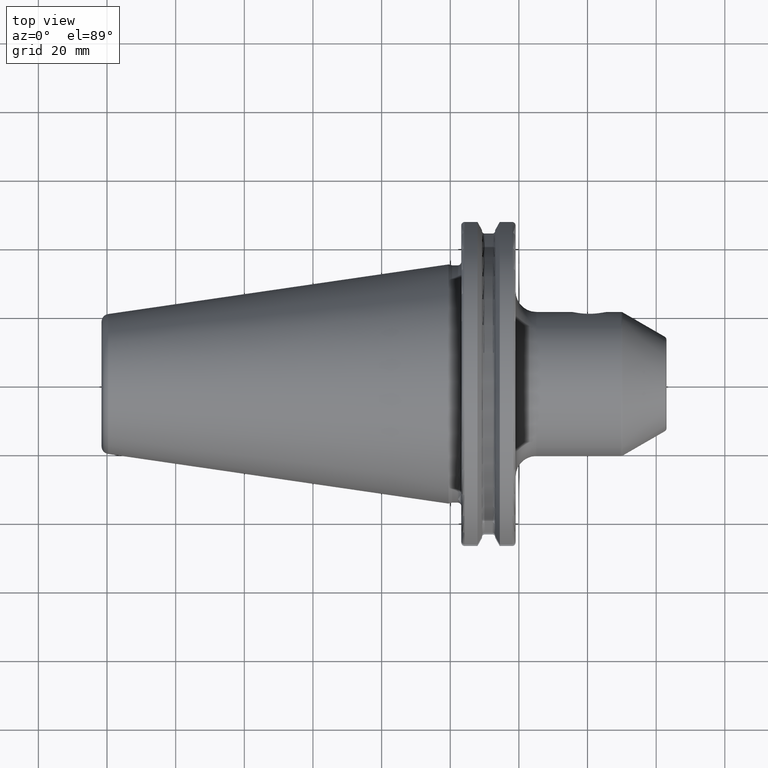
[diagram: clean part render]
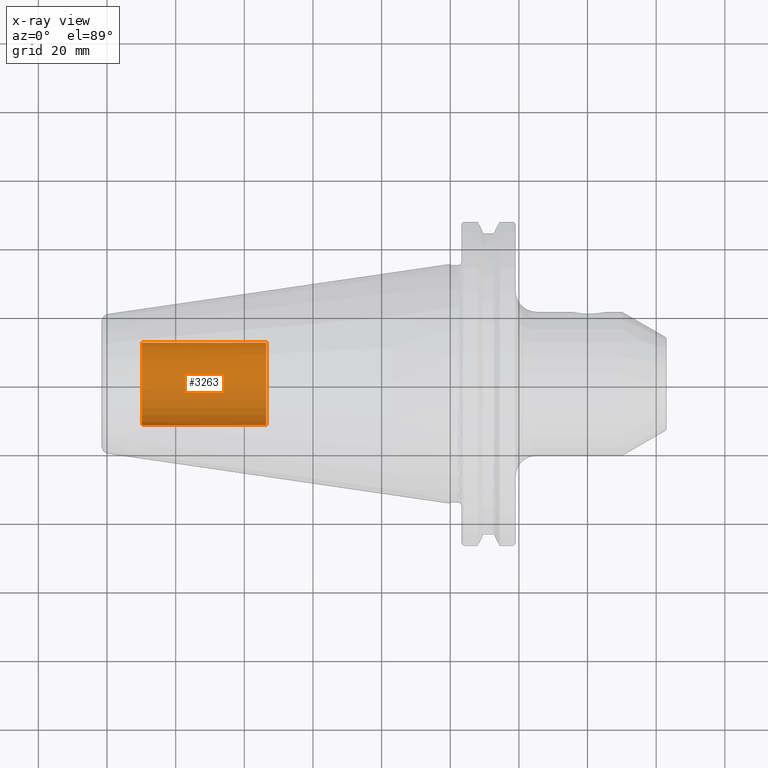
[diagram: x-ray — body ghosted, one internal face saturated and labeled with its STEP entity id]
A machine part, top view, then the same camera in x-ray: the body is ghosted and one INTERNAL B-rep face — a face not visible from any outside direction — is saturated and labeled: STEP entity #3263.
In plain terms, the highlighted cylindrical surface (partial cylindrical patch) has radius 12.0032 mm, axis along (1, 0, 0).
Its self-contained STEP definition (entity closure, byte-faithful):
#3198=CARTESIAN_POINT('',(-8.985E1,0.E0,0.E0));
#3199=DIRECTION('',(-1.E0,0.E0,0.E0));
#3200=DIRECTION('',(0.E0,1.E0,0.E0));
#3201=AXIS2_PLACEMENT_3D('',#3198,#3199,#3200);
#3203=DIRECTION('',(1.E0,0.E0,0.E0));
#3204=VECTOR('',#3203,3.625E1);
#3205=CARTESIAN_POINT('',(-8.985E1,-1.200325E1,0.E0));
#3206=LINE('',#3205,#3204);
#3212=DIRECTION('',(1.E0,0.E0,0.E0));
#3213=VECTOR('',#3212,3.625E1);
#3214=CARTESIAN_POINT('',(-8.985E1,1.200325E1,0.E0));
#3215=LINE('',#3214,#3213);
#3221=CARTESIAN_POINT('',(-5.36E1,0.E0,0.E0));
#3222=DIRECTION('',(1.E0,0.E0,0.E0));
#3223=DIRECTION('',(0.E0,-1.E0,0.E0));
#3224=AXIS2_PLACEMENT_3D('',#3221,#3222,#3223);
#3236=CARTESIAN_POINT('',(-8.985E1,1.200325E1,0.E0));
#3237=CARTESIAN_POINT('',(-8.985E1,-1.200325E1,0.E0));
#3238=VERTEX_POINT('',#3236);
#3239=VERTEX_POINT('',#3237);
#3240=CARTESIAN_POINT('',(-5.36E1,1.200325E1,0.E0));
#3241=CARTESIAN_POINT('',(-5.36E1,-1.200325E1,0.E0));
#3242=VERTEX_POINT('',#3240);
#3243=VERTEX_POINT('',#3241);
#3248=CARTESIAN_POINT('',(-8.985E1,0.E0,0.E0));
#3249=DIRECTION('',(1.E0,0.E0,0.E0));
#3250=DIRECTION('',(0.E0,1.E0,0.E0));
#3251=AXIS2_PLACEMENT_3D('',#3248,#3249,#3250);
#3252=CYLINDRICAL_SURFACE('',#3251,1.200325E1);
#3254=ORIENTED_EDGE('',*,*,#3253,.T.);
#3256=ORIENTED_EDGE('',*,*,#3255,.T.);
#3258=ORIENTED_EDGE('',*,*,#3257,.T.);
#3260=ORIENTED_EDGE('',*,*,#3259,.F.);
#3261=EDGE_LOOP('',(#3254,#3256,#3258,#3260));
#3262=FACE_OUTER_BOUND('',#3261,.F.);
#3263=ADVANCED_FACE('',(#3262),#3252,.T.);
#3202=CIRCLE('',#3201,1.200325E1);
#3225=CIRCLE('',#3224,1.200325E1);
#3253=EDGE_CURVE('',#3238,#3239,#3202,.T.);
#3255=EDGE_CURVE('',#3239,#3243,#3206,.T.);
#3257=EDGE_CURVE('',#3243,#3242,#3225,.T.);
#3259=EDGE_CURVE('',#3238,#3242,#3215,.T.);